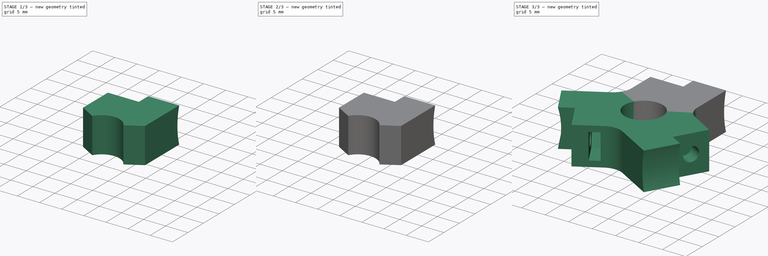
[diagram: build sequence overview — one tinted view per stage of 3, left to right]
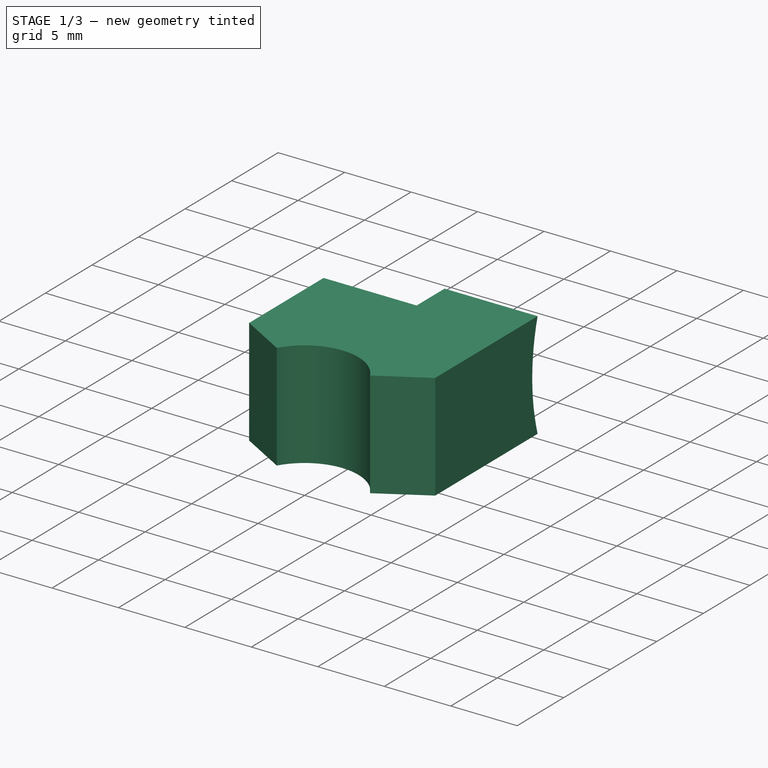
[diagram: stage 1 of 3 — iso view after this stage's code; geometry added in this stage tinted green]
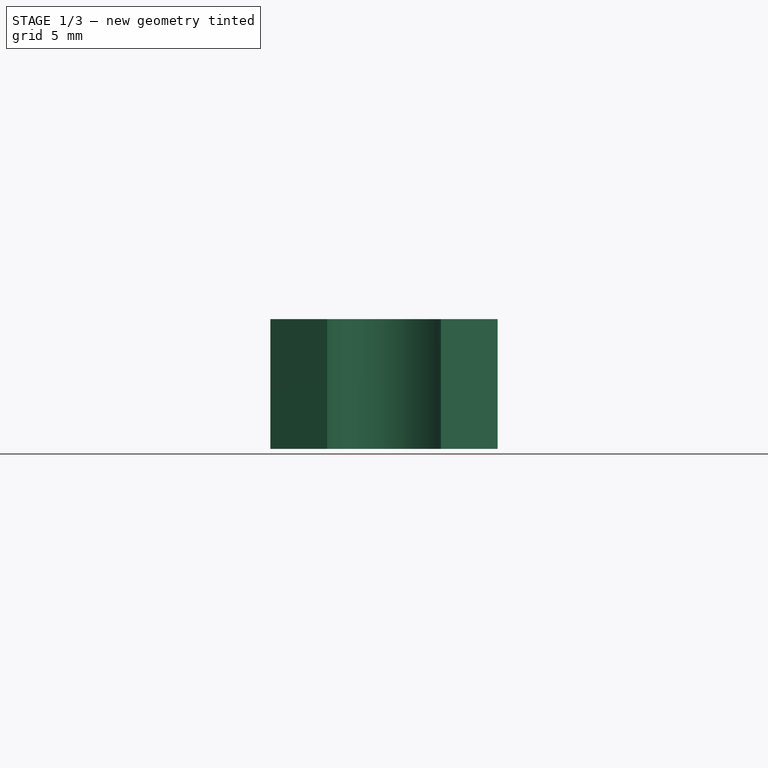
[diagram: stage 1 of 3 — front view after this stage's code; geometry added in this stage tinted green]
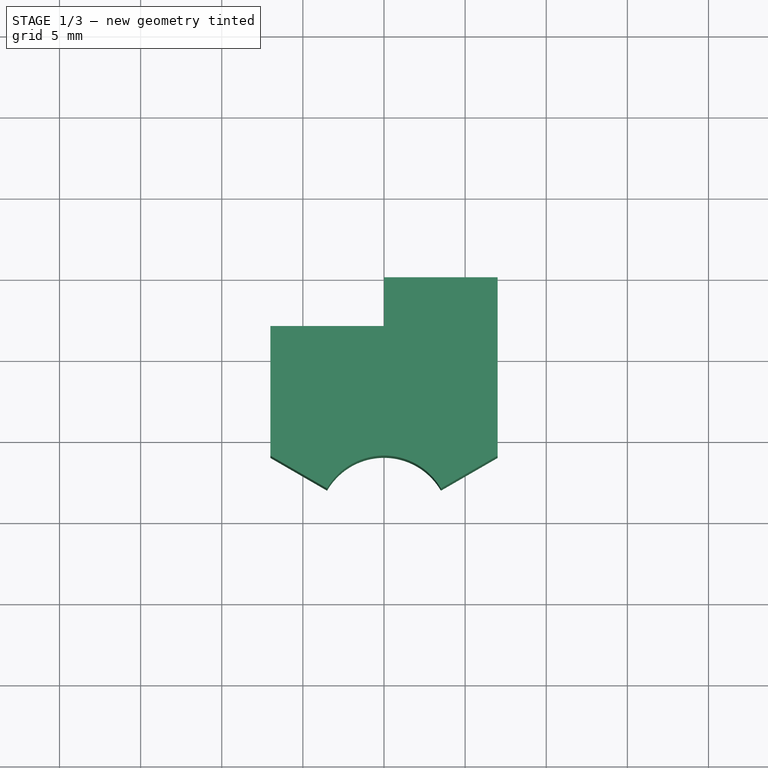
[diagram: stage 1 of 3 — top view after this stage's code; geometry added in this stage tinted green]
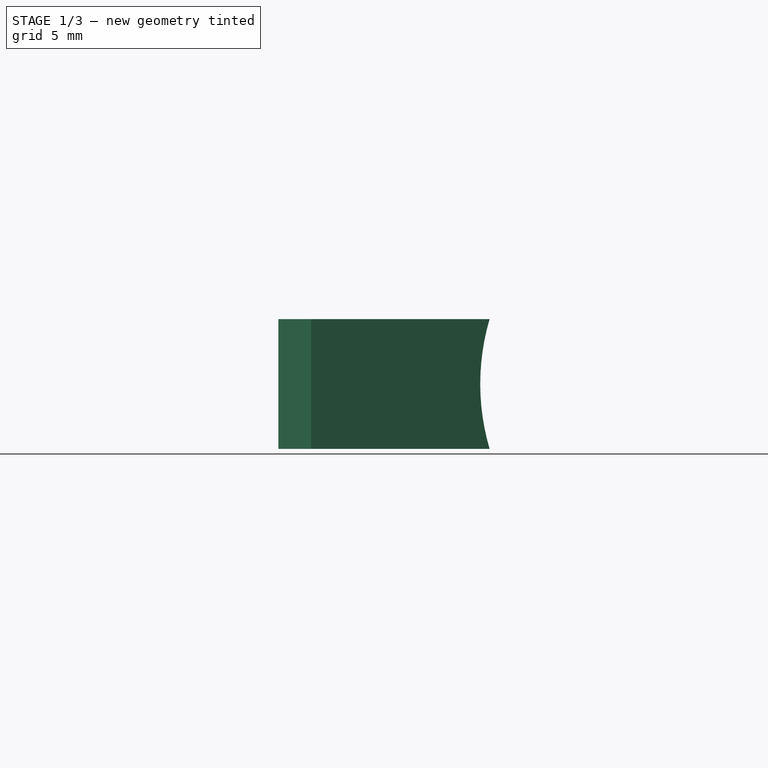
[diagram: stage 1 of 3 — right view after this stage's code; geometry added in this stage tinted green]
FCSTD DOCUMENT  (FreeCAD 0.16RUnknown)
Label: joint-base-y.010.1
License: All rights reserved
LicenseURL: http://en.wikipedia.org/wiki/All_rights_reserved
objects: Sketcher::SketchObject×4, Part::Extrusion×2, PartDesign::Pocket×2, Part::Feature×2, Part::Cut×1, Part::MultiFuse×1, Part::Fillet×1
note: 15 computed .brp shape members not serialized (recipe doc carries the construction recipe); baked Part::Feature solids carry a one-line shape summary decoded from their .brp

FEATURE [Sketcher::SketchObject] Sketch
  sketch-geometry (24):
    g0: LineSegment [constr] StartX=-9.52628 StartY=-13.5829 StartZ=0 EndX=-16.5263 EndY=-1.45855 EndZ=0
    g1: LineSegment [constr] StartX=16.5263 StartY=-1.45855 StartZ=0 EndX=9.52628 EndY=-13.5829 EndZ=0
    g2: LineSegment [constr] StartX=-9.52628 StartY=-13.5829 StartZ=0 EndX=7 EndY=15.0415 EndZ=0
    g3: LineSegment [constr] StartX=-7 StartY=15.0415 StartZ=0 EndX=9.52628 EndY=-13.5829 EndZ=0
    g4: LineSegment [constr] StartX=16.5263 StartY=-1.45855 StartZ=0 EndX=-16.5263 EndY=-1.45855 EndZ=0
    g5: LineSegment [constr] StartX=-16.5263 StartY=-1.45855 StartZ=0 EndX=-7 EndY=4.04145 EndZ=0
    g6: LineSegment StartX=7 StartY=15.0415 StartZ=0 EndX=7 EndY=4.04145 EndZ=0
    g7: LineSegment [constr] StartX=7 StartY=4.04145 StartZ=0 EndX=16.5263 EndY=-1.45855 EndZ=0
    g8: LineSegment [constr] StartX=-9.52628 StartY=-13.5829 StartZ=0 EndX=0 EndY=-8.0829 EndZ=0
    g9: LineSegment [constr] StartX=0 StartY=-8.0829 StartZ=0 EndX=9.52628 EndY=-13.5829 EndZ=0
    g10: ArcOfCircle CenterX=0 CenterY=0 CenterZ=0 NormalX=0 NormalY=0 NormalZ=1 Radius=4.05 StartAngle=0.523599 EndAngle=2.61799
    g11: ArcOfCircle [constr] CenterX=0 CenterY=0 CenterZ=0 NormalX=0 NormalY=0 NormalZ=1 Radius=4.05 StartAngle=2.61799 EndAngle=6.80678
    g12: LineSegment StartX=-7 StartY=4.04145 StartZ=0 EndX=-3.5074 EndY=2.025 EndZ=0
    g13: LineSegment [constr] StartX=-3.5074 StartY=2.025 StartZ=0 EndX=0 EndY=0 EndZ=0
    g14: LineSegment [constr] StartX=0 StartY=0 StartZ=0 EndX=3.5074 EndY=2.025 EndZ=0
    g15: LineSegment StartX=3.5074 StartY=2.025 StartZ=0 EndX=7 EndY=4.04145 EndZ=0
    g16: LineSegment [constr] StartX=0 StartY=0 StartZ=0 EndX=0 EndY=-4.05 EndZ=0
    g17: LineSegment [constr] StartX=0 StartY=-4.05 StartZ=0 EndX=0 EndY=-8.0829 EndZ=0
    g18: LineSegment StartX=7 StartY=15.0415 StartZ=0 EndX=0 EndY=15.0415 EndZ=0
    g19: LineSegment StartX=0 StartY=15.0415 StartZ=0 EndX=0 EndY=12.0415 EndZ=0
    g20: LineSegment StartX=0 StartY=12.0415 StartZ=0 EndX=-7 EndY=12.0415 EndZ=0
    g21: LineSegment StartX=-7 StartY=4.04145 StartZ=0 EndX=-7 EndY=12.0415 EndZ=0
    g22: LineSegment [constr] StartX=-7 StartY=12.0415 StartZ=0 EndX=-7 EndY=15.0415 EndZ=0
    g23: LineSegment [constr] StartX=-7 StartY=15.0415 StartZ=0 EndX=0 EndY=15.0415 EndZ=0
  constraints (66):
    c: Equal(g0,g1)
    c: Horizontal(g4)
    c: Coincident(g0,g4)
    c: Coincident(g0,g2)
    c: Coincident(g1,g3)
    c: Equal(g2,g4)
    c: Equal(g4,g3)
    c: Vertical(g6)
    c: Coincident(g6,g7)
    c: Coincident(g8,g9)
    c: Coincident(g0,g5)
    c: Coincident(g1,g4)
    c: Coincident(g1,g7)
    c: Coincident(g1,g9)
    c: Coincident(g0,g8)
    c: Equal(g5,g8)
    c: Equal(g8,g9)
    c: Equal(g9,g6)
    c: Equal(g6,g7)
    c: Perpendicular(g5,g0)
    c: PointOnObject(g8,g-2)
    c: DistanceY(g6,g6) = 11
    c: Coincident(g10,g11)
    c: Coincident(g10,g11)
    c: Coincident(g12,g13)
    c: Coincident(g13,g14)
    c: Coincident(g14,g15)
    c: Vertical(g16)
    c: Coincident(g16,g17)
    c: Vertical(g17)
    c: PointOnObject(g16,g11)
    c: Coincident(g10,g12)
    c: Coincident(g5,g12)
    c: Coincident(g10,g14)
    c: Coincident(g6,g15)
    c: Coincident(g10,g11)
    c: Coincident(g10,g13)
    c: Coincident(g10,g16)
    c: Coincident(g10,g-1)
    c: Coincident(g8,g17)
    c: Parallel(g13,g12)
    c: Parallel(g14,g15)
    c: Radius(g11) = 4.05
    c: Equal(g17,g12)
    c: Equal(g12,g15)
    c: Horizontal(g18)
    c: Coincident(g18,g19)
    c: Vertical(g19)
    c: Coincident(g19,g20)
    c: Horizontal(g20)
    c: Coincident(g2,g6)
    c: Coincident(g2,g18)
    c: Vertical(g21)
    c: Coincident(g21,g22)
    c: Vertical(g22)
    c: Coincident(g3,g22)
    c: Coincident(g5,g21)
    c: Coincident(g20,g21)
    c: PointOnObject(g19,g-2)
    c: DistanceY(g22,g22) = 3
    c: DistanceX(g3,g2) = 14
    c: Horizontal(g23)
    c: Coincident(g18,g23)
    c: Coincident(g3,g23)
    c: Angle(g13,g16) = 2.0944
    c: Angle(g16,g14) = 2.0944
FEATURE [Part::Extrusion] Extrude
  Base = -> Sketch
  Dir = (0,0,8)
  Solid = true
FEATURE [Sketcher::SketchObject] Sketch001
  ExternalGeometry = -> [Extrude]
  Placement = pos=(0,0,0) rot=(0.57735,-0.57735,-0.57735;2.0944rad)
  Support = -> Extrude [Face7]
  sketch-geometry (2):
    g0: LineSegment StartX=-15.0415 StartY=8 StartZ=0 EndX=-15.0415 EndY=0 EndZ=0
    g1: ArcOfCircle CenterX=-28.6143 CenterY=4 CenterZ=0 NormalX=0 NormalY=0 NormalZ=1 Radius=14.15 StartAngle=5.99659 EndAngle=6.56978
  constraints (6):
    c: Vertical(g0)
    c: Coincident(g0,g1)
    c: Coincident(g0,g-3)
    c: Coincident(g0,g1)
    c: Coincident(g0,g-3)
    c: Radius(g1) = 14.15
FEATURE [PartDesign::Pocket] Pocket
  Length = 5
  Sketch = -> Sketch001
  Type = 1
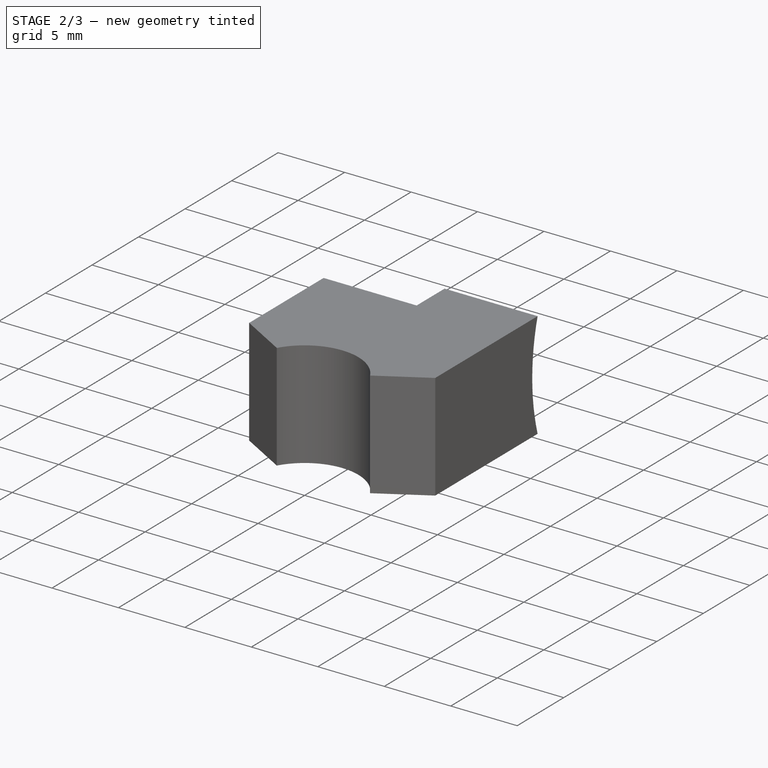
[diagram: stage 2 of 3 — iso view after this stage's code; geometry added in this stage tinted green]
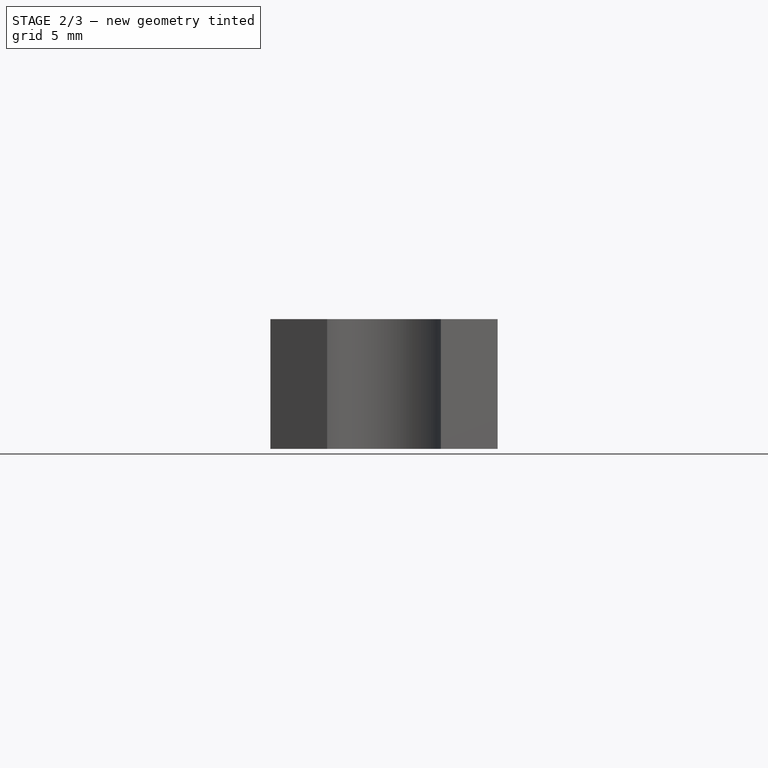
[diagram: stage 2 of 3 — front view after this stage's code; geometry added in this stage tinted green]
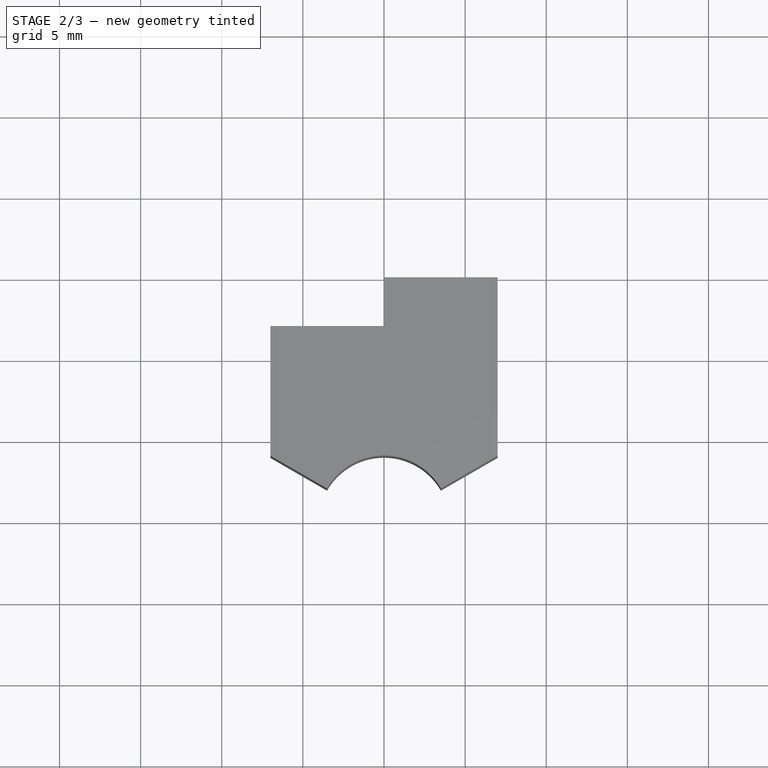
[diagram: stage 2 of 3 — top view after this stage's code; geometry added in this stage tinted green]
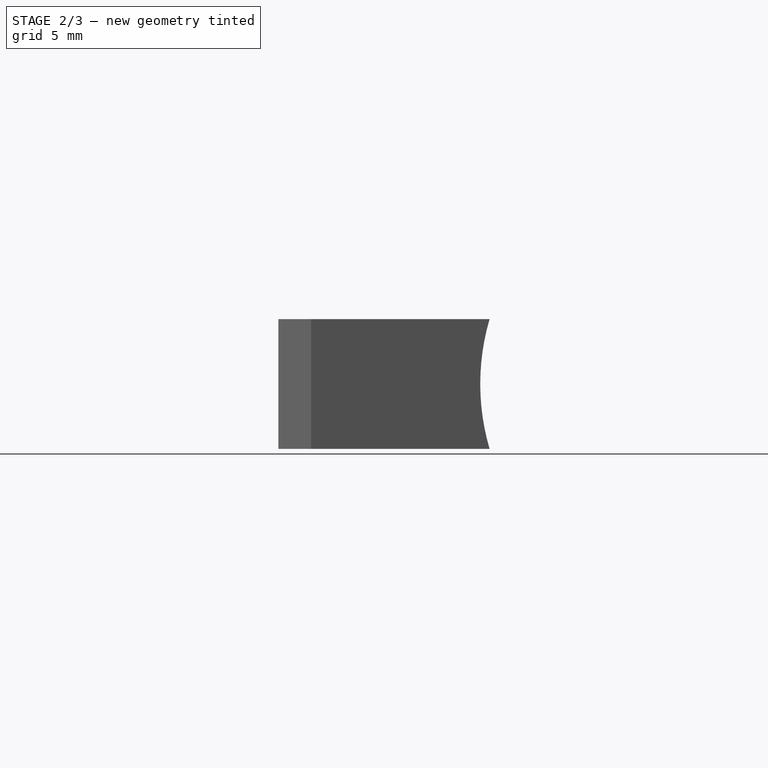
[diagram: stage 2 of 3 — right view after this stage's code; geometry added in this stage tinted green]
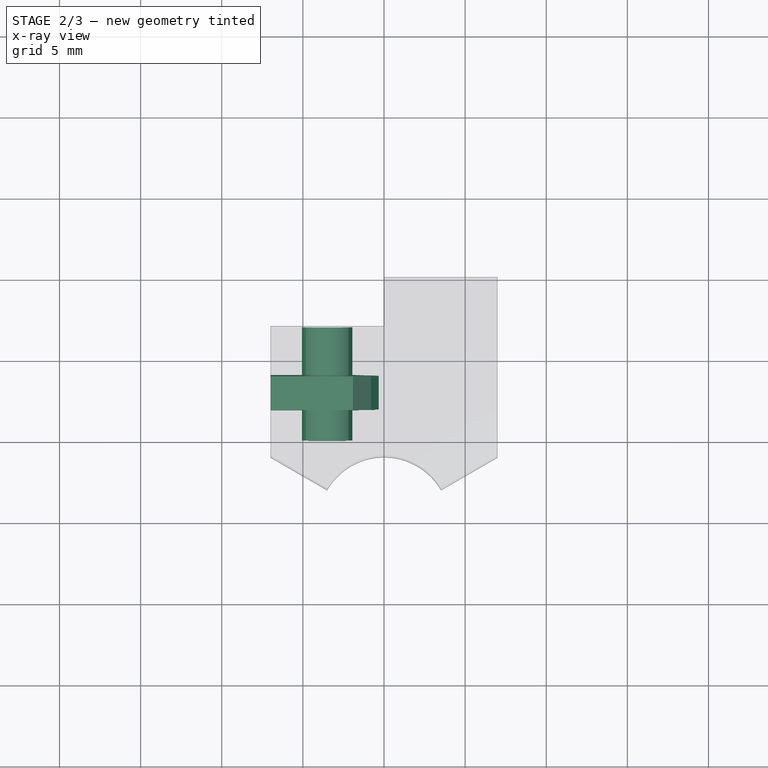
[diagram: stage 2 of 3 — x-ray composite at the top view; earlier geometry ghosted, this stage's added geometry solid]
FEATURE [Sketcher::SketchObject] Sketch002
  ExternalGeometry = -> [Pocket]
  Placement = pos=(0,12.0415,0) rot=(0,0.707107,0.707107;3.14159rad)
  Support = -> Pocket [Face8]
  sketch-geometry (3):
    g0: LineSegment [constr] StartX=0 StartY=0 StartZ=0 EndX=3.5 EndY=4 EndZ=0
    g1: LineSegment [constr] StartX=3.5 StartY=4 StartZ=0 EndX=7 EndY=8 EndZ=0
    g2: Circle CenterX=3.5 CenterY=4 CenterZ=0 NormalX=0 NormalY=0 NormalZ=1 Radius=1.55
  constraints (7):
    c: Coincident(g0,g1)
    c: Coincident(g1,g-3)
    c: Coincident(g0,g-4)
    c: Equal(g0,g1)
    c: Parallel(g1,g0)
    c: Coincident(g0,g2)
    c: Radius(g2) = 1.55
FEATURE [PartDesign::Pocket] Pocket001
  Length = 7
  Sketch = -> Sketch002
  Type = 0
FEATURE [Sketcher::SketchObject] Sketch003
  ExternalGeometry = -> [Pocket001]
  Placement = pos=(0,12.0415,0) rot=(0,0.707107,0.707107;3.14159rad)
  Support = -> Pocket001 [Face8]
  sketch-geometry (6):
    g0: LineSegment [constr] StartX=3.5 StartY=4 StartZ=0 EndX=0.324574 EndY=4 EndZ=0
    g1: LineSegment StartX=0.324574 StartY=4 StartZ=0 EndX=1.91229 EndY=6.75 EndZ=0
    g2: LineSegment StartX=1.91229 StartY=6.75 StartZ=0 EndX=7 EndY=6.75 EndZ=0
    g3: LineSegment StartX=7 StartY=6.75 StartZ=0 EndX=7 EndY=1.25 EndZ=0
    g4: LineSegment StartX=7 StartY=1.25 StartZ=0 EndX=1.91229 EndY=1.25 EndZ=0
    g5: LineSegment StartX=1.91229 StartY=1.25 StartZ=0 EndX=0.324574 EndY=4 EndZ=0
  constraints (17):
    c: Horizontal(g0)
    c: Coincident(g0,g1)
    c: Coincident(g1,g2)
    c: Horizontal(g2)
    c: Coincident(g2,g3)
    c: Vertical(g3)
    c: Coincident(g3,g4)
    c: Horizontal(g4)
    c: Coincident(g4,g5)
    c: Coincident(g0,g5)
    c: Equal(g5,g0)
    c: Equal(g0,g1)
    c: Coincident(g-4,g0)
    c: Angle(g5,g1) = 2.0944
    c: Equal(g2,g4)
    c: PointOnObject(g2,g-3)
    c: DistanceY(g3,g3) = 5.5
FEATURE [Part::Extrusion] Extrude001
  Base = -> Sketch003
  Dir = (0,-2.1,0)
  Placement = pos=(0,-3,0) rot=(0,0,1;0rad)
  Solid = true
FEATURE [Part::Cut] Cut
  Base = -> Pocket001
  Tool = -> Extrude001
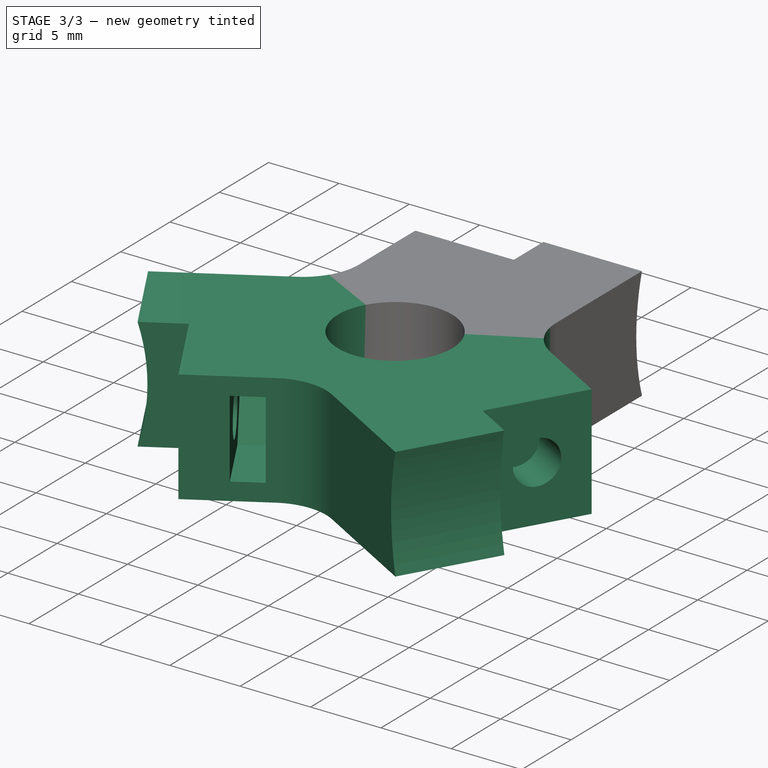
[diagram: stage 3 of 3 — iso view after this stage's code; geometry added in this stage tinted green]
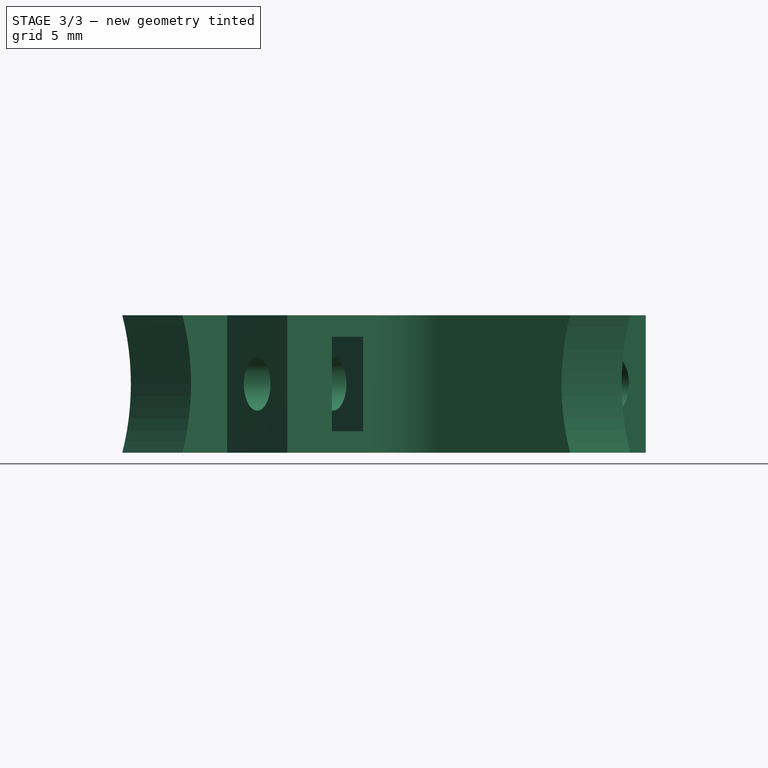
[diagram: stage 3 of 3 — front view after this stage's code; geometry added in this stage tinted green]
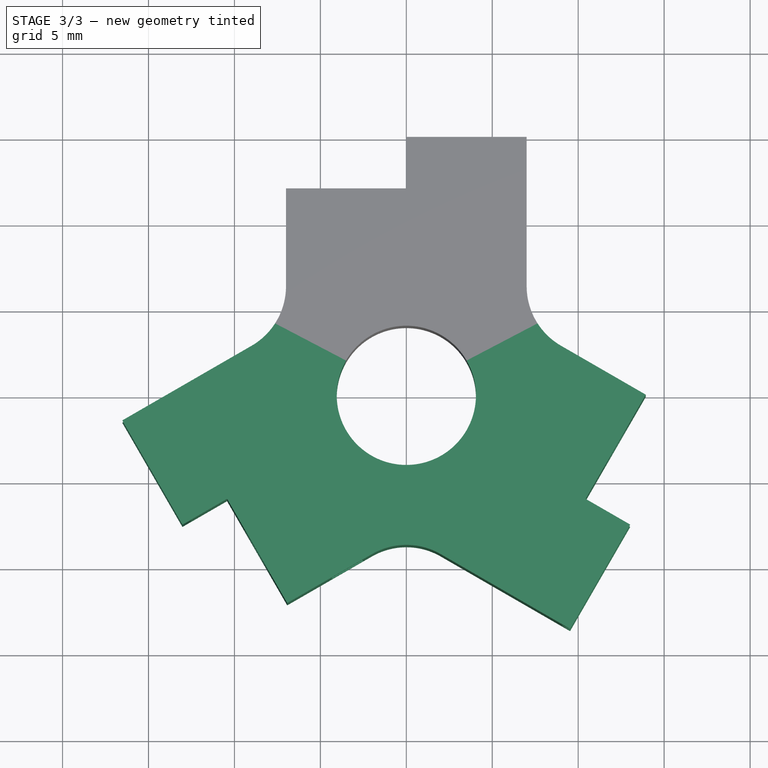
[diagram: stage 3 of 3 — top view after this stage's code; geometry added in this stage tinted green]
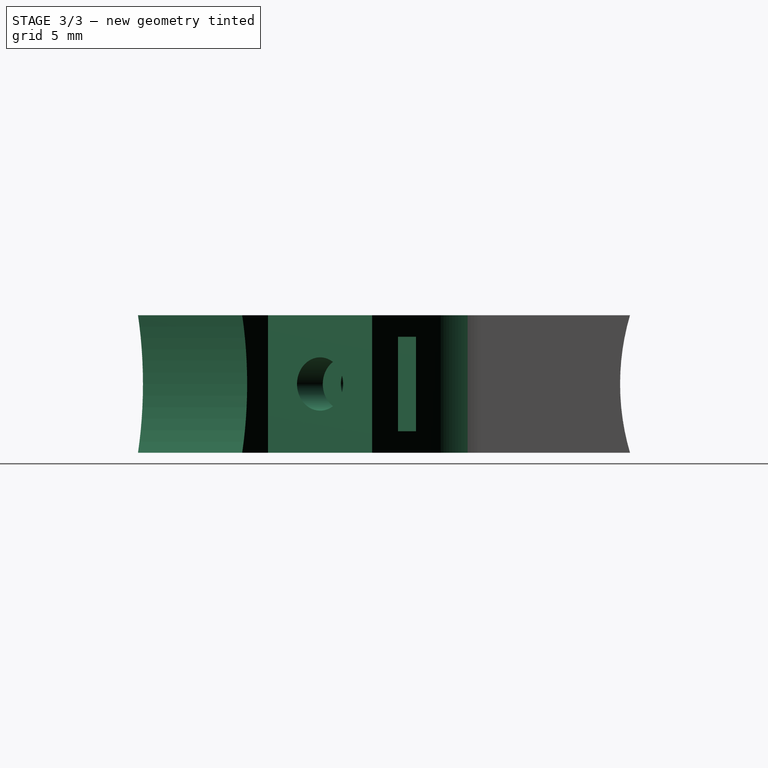
[diagram: stage 3 of 3 — right view after this stage's code; geometry added in this stage tinted green]
FEATURE [Part::Feature] Cut001
  Placement = pos=(0,0,0) rot=(0,0,1;2.0944rad)
  shape: bbox 16.53 x 16.12 x 8 mm, 19 faces (baked)
FEATURE [Part::Feature] Cut002
  Placement = pos=(0,0,0) rot=(0,0,-1;2.0944rad)
  shape: bbox 13.93 x 17.62 x 8 mm, 19 faces (baked)
FEATURE [Part::MultiFuse] Fusion
  Shapes = -> [Cut,Cut002,Cut001]
FEATURE [Part::Fillet] Fillet
  Base = -> Fusion
  Edges = 3 edges r=4: [Edge15,Edge38,Edge64]
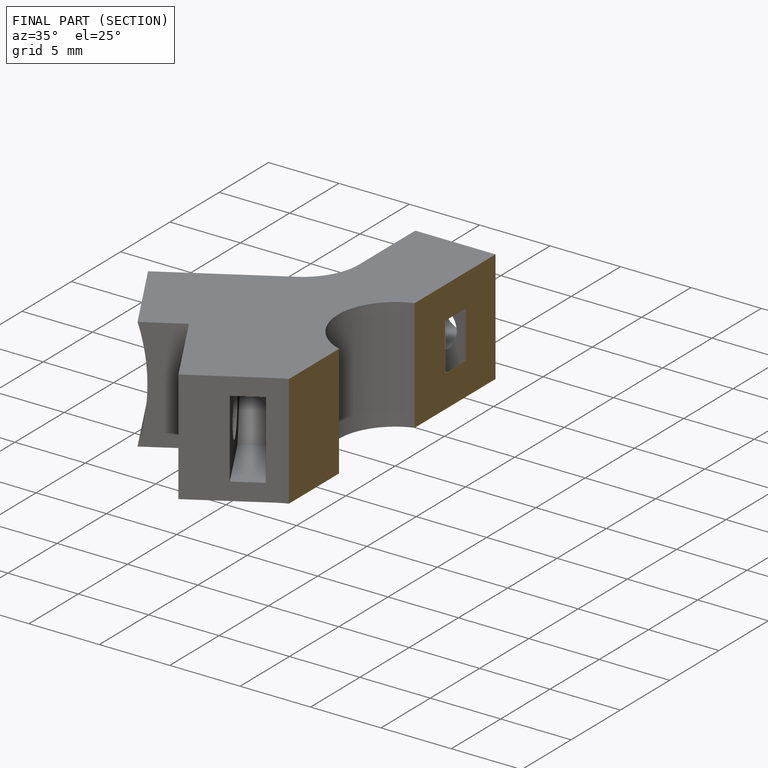
[diagram: finished part — half-section view (interior)]
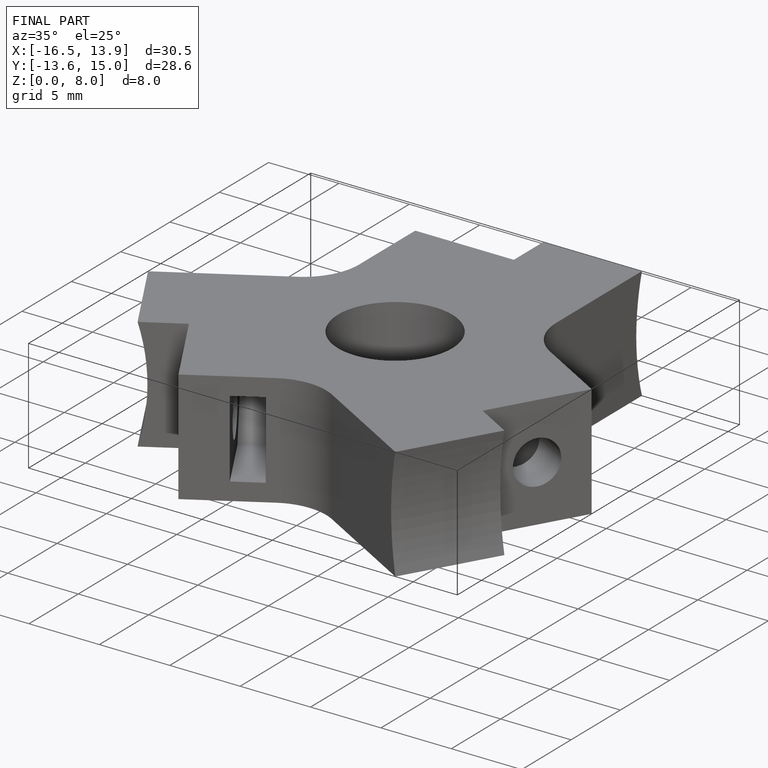
[diagram: finished part — iso view with bounding-box wireframe]
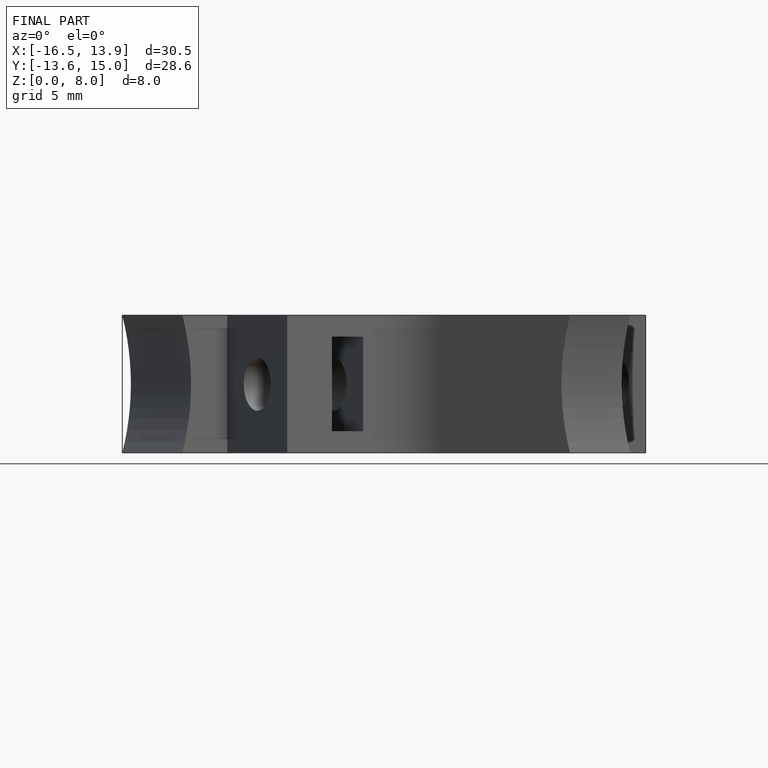
[diagram: finished part — front view with bounding-box wireframe]
